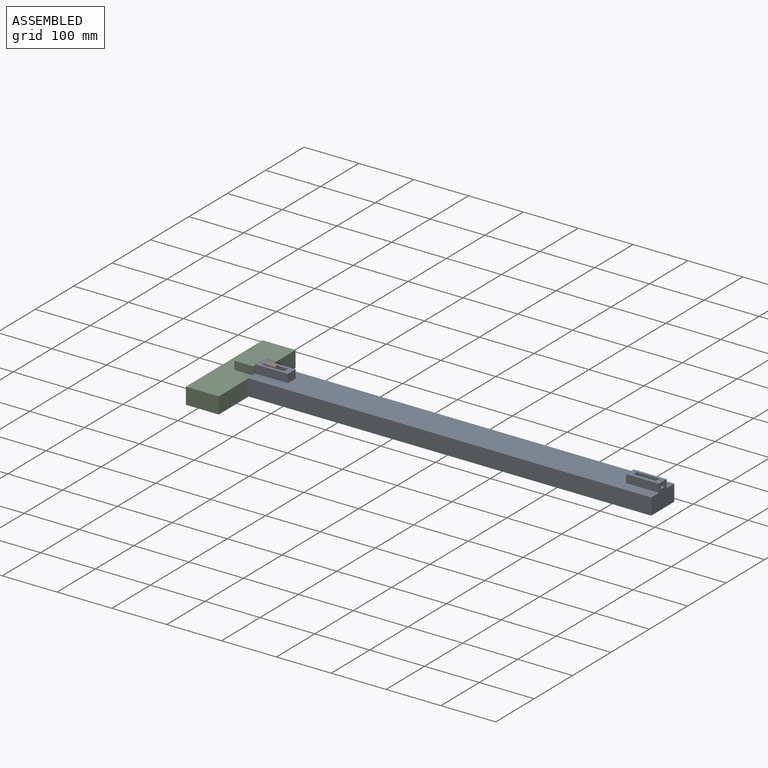
[diagram: assembled view]
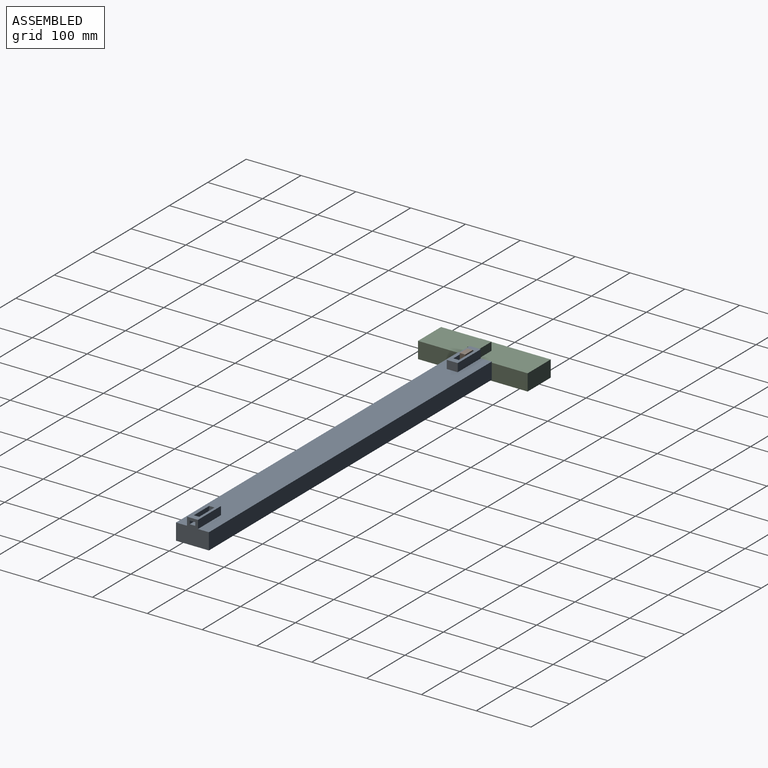
[diagram: assembled view, second angle]
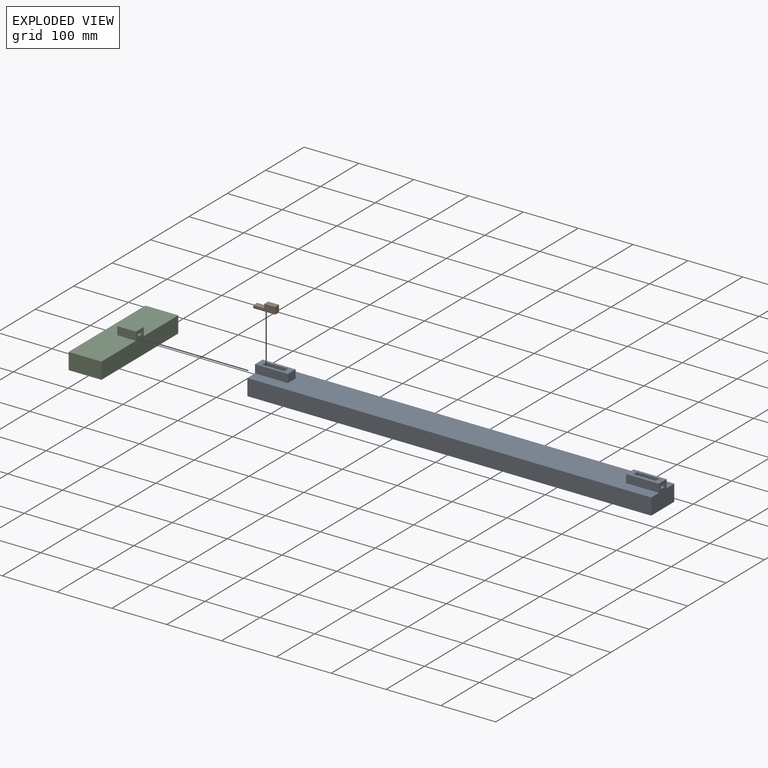
[diagram: exploded view]
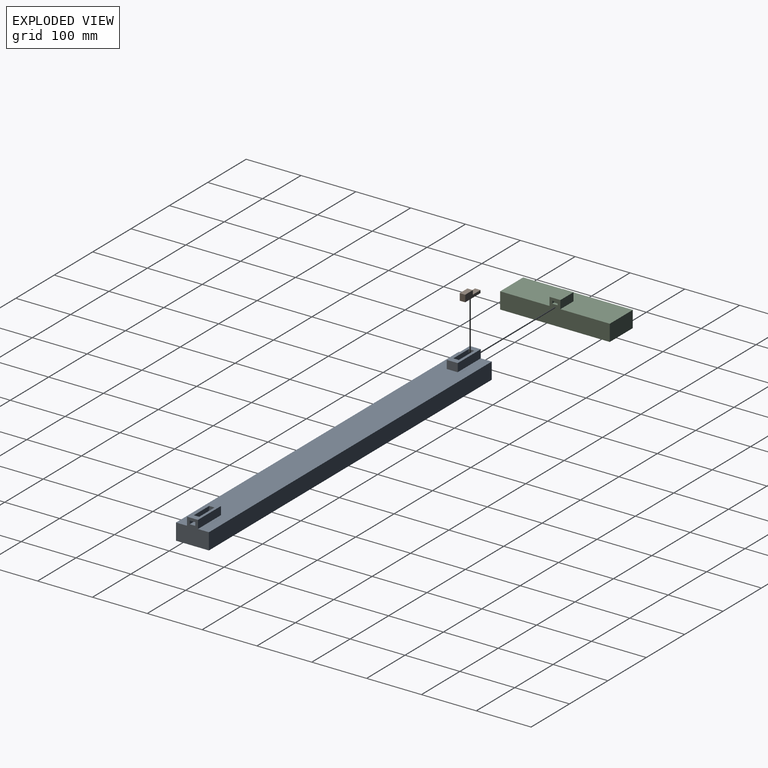
[diagram: exploded view, second angle]
ASSEMBLY  parts=3 mates=4
PART A: 29 faces, bbox 736.6x60x45 mm
  f0: plane 60x20mm, normal (0,0,1), area 813.9mm2, adj f1,f17,f18,f19,f24,f26,f27,f28
  f1: plane 60x45mm, normal (1,0,0), area 2038.9mm2, adj f0,f5,f6,f7,f8,f17,f19,f20
  f2: plane 10x10mm, normal (0,0,-1), area 100mm2, adj f4,f12,f14,f16
  f3: plane 60x20mm, normal (0,0,1), area 800mm2, adj f4,f9,f10,f11,f12,f14,f15,f16
  f4: plane 60x45mm, normal (-1,0,0), area 2050mm2, adj f2,f3,f5,f6,f7,f8,f9,f10
  f5: plane 736.6x60mm, normal (0,0,-1), area 44196mm2, adj f1,f4,f7,f8
  f6: plane 736.6x60mm, normal (0,0,1), area 41796mm2, adj f1,f4,f7,f8,f9,f10,f11,f17
  f7: plane 736.6x30mm, normal (0,1,0), area 22098mm2, adj f1,f4,f5,f6
  f8: plane 736.6x30mm, normal (0,-1,0), area 22098mm2, adj f1,f4,f5,f6
  f9: plane 60x15mm, normal (0,1,0), area 900mm2, adj f3,f4,f6,f11
  f10: plane 60x15mm, normal (0,-1,0), area 900mm2, adj f3,f4,f6,f11
  f11: plane 20x15mm, normal (1,0,0), area 300mm2, adj f3,f6,f9,f10
  f12: plane 50x10mm, normal (0,-1,0), area 450mm2, adj f2,f3,f4,f13,f15,f16
  f13: plane 50x10mm, normal (0,0,1), area 500mm2, adj f4,f12,f14,f15
  f14: plane 50x10mm, normal (0,1,0), area 450mm2, adj f2,f3,f4,f13,f15,f16
  f15: plane 10x10mm, normal (-1,0,0), area 100mm2, adj f3,f12,f13,f14
  f16: plane 10x5mm, normal (1,0,0), area 50mm2, adj f2,f3,f12,f14
  f17: plane 60x15mm, normal (0,1,0), area 900mm2, adj f0,f1,f6,f18
  f18: plane 20x15mm, normal (-1,0,0), area 300mm2, adj f0,f6,f17,f19
  f19: plane 60x15mm, normal (0,-1,0), area 900mm2, adj f0,f1,f6,f18
  f20: plane 50x10mm, normal (0,0,-1), area 122.6mm2, adj f1,f21,f23,f24,f26,f27
  f21: plane 50x6.11mm, normal (0,1,0), area 305.5mm2, adj f1,f20,f22,f24
  f22: plane 50x10mm, normal (0,0,1), area 500mm2, adj f1,f21,f23,f24
  f23: plane 50x6.11mm, normal (0,-1,0), area 305.5mm2, adj f1,f20,f22,f24,f25
  f24: plane 11.11x10.22mm, normal (1,0,0), area 109.4mm2, adj f0,f20,f21,f22,f23,f25,f26,f28
  f25: plane 40x0.22mm, normal (0,0,1), area 8.7mm2, adj f23,f24,f27,f28
  f26: plane 40x5mm, normal (0,1,0), area 200mm2, adj f0,f20,f24,f27
  f27: plane 9.65x5mm, normal (-1,0,0), area 48.3mm2, adj f0,f20,f25,f26,f28
  f28: plane 40x5mm, normal (0,-1,0), area 200mm2, adj f0,f24,f25,f27
PART B: 8 faces, bbox 40x10x12.5 mm
  f0: plane 10x5mm, normal (-1,0,0), area 50mm2, adj f1,f5,f6,f7
  f1: plane 40x10mm, normal (0,0,-1), area 400mm2, adj f0,f2,f6,f7
  f2: plane 12.5x10mm, normal (1,0,0), area 125mm2, adj f1,f3,f6,f7
  f3: plane 20x10mm, normal (0,0,1), area 200mm2, adj f2,f4,f6,f7
  f4: plane 10x7.5mm, normal (-1,0,0), area 75mm2, adj f3,f5,f6,f7
  f5: plane 20x10mm, normal (0,0,1), area 200mm2, adj f0,f4,f6,f7
  f6: plane 40x12.5mm, normal (0,-1,0), area 350mm2, adj f0,f1,f2,f3,f4,f5
  f7: plane 40x12.5mm, normal (0,1,0), area 350mm2, adj f0,f1,f2,f3,f4,f5
PART C: 15 faces, bbox 60x200x45 mm
  f0: plane 200x45mm, normal (1,0,0), area 6250mm2, adj f1,f2,f4,f5,f7,f8,f9,f10
  f1: plane 200x60mm, normal (0,0,1), area 11315.8mm2, adj f0,f2,f3,f4,f6,f7,f8
  f2: plane 60x30mm, normal (0,1,0), area 1800mm2, adj f0,f1,f3,f5
  f3: plane 200x30mm, normal (-1,0,0), area 6000mm2, adj f1,f2,f4,f5
  f4: plane 60x30mm, normal (0,-1,0), area 1800mm2, adj f0,f1,f3,f5
  f5: plane 200x60mm, normal (0,0,-1), area 12000mm2, adj f0,f2,f3,f4
  f6: plane 20x15mm, normal (-1,0,0), area 300mm2, adj f1,f7,f8,f9
  f7: plane 34.21x15mm, normal (0,-1,0), area 513.2mm2, adj f0,f1,f6,f9
  f8: plane 34.21x15mm, normal (0,1,0), area 513.2mm2, adj f0,f1,f6,f9
  f9: plane 34.21x20mm, normal (0,0,1), area 684.2mm2, adj f0,f6,f7,f8
  f10: plane 10x5mm, normal (0,0,-1), area 50mm2, adj f0,f11,f13,f14
  f11: plane 5x5mm, normal (0,1,0), area 25mm2, adj f0,f10,f12,f14
  f12: plane 10x5mm, normal (0,0,1), area 50mm2, adj f0,f11,f13,f14
  f13: plane 5x5mm, normal (0,-1,0), area 25mm2, adj f0,f10,f12,f14
  f14: plane 10x5mm, normal (1,0,0), area 50mm2, adj f10,f11,f12,f13
PLACE A t=(106.38,-94.75,78.62)mm
PLACE B t=(-24.76,-59.75,101.44)mm
PLACE C t=(-36.18,9.7,62.47)mm
MATE planar B.f7 <-> A.f12  axis (0,1,0) through (-29.18,-59.75,104.52)mm
MATE planar A.f13 <-> B.f1  axis (0,0,1) through (3.18,-69.75,99.34)mm
MATE planar A.f4 <-> C.f0  axis (-1,0,0) through (-46.82,-64.75,82.08)mm
MATE parallel C.f9 <-> A.f3  axis (0,0,1) through (-63.92,-69.2,107.47)mm
